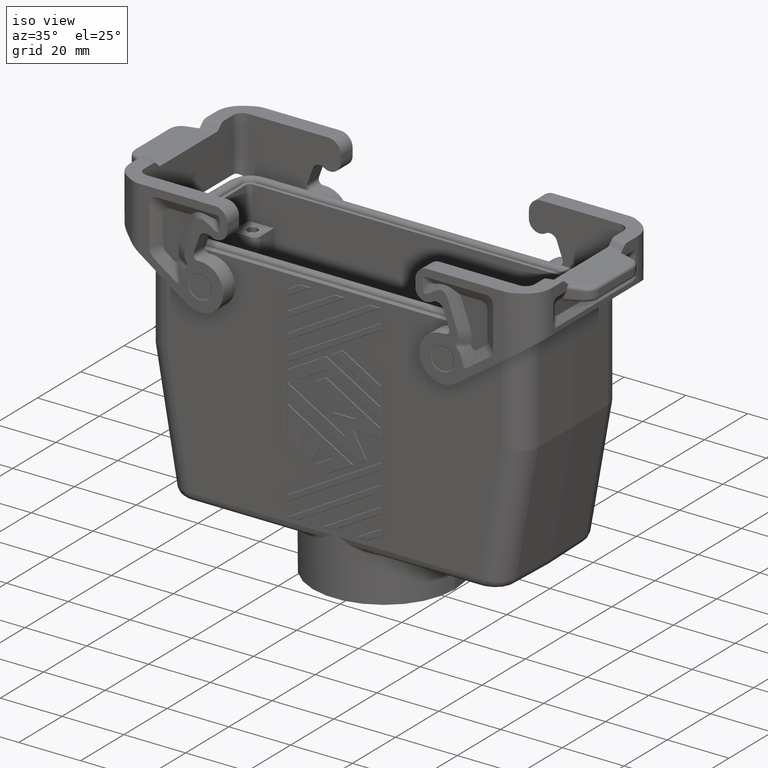
[diagram: clean part render]
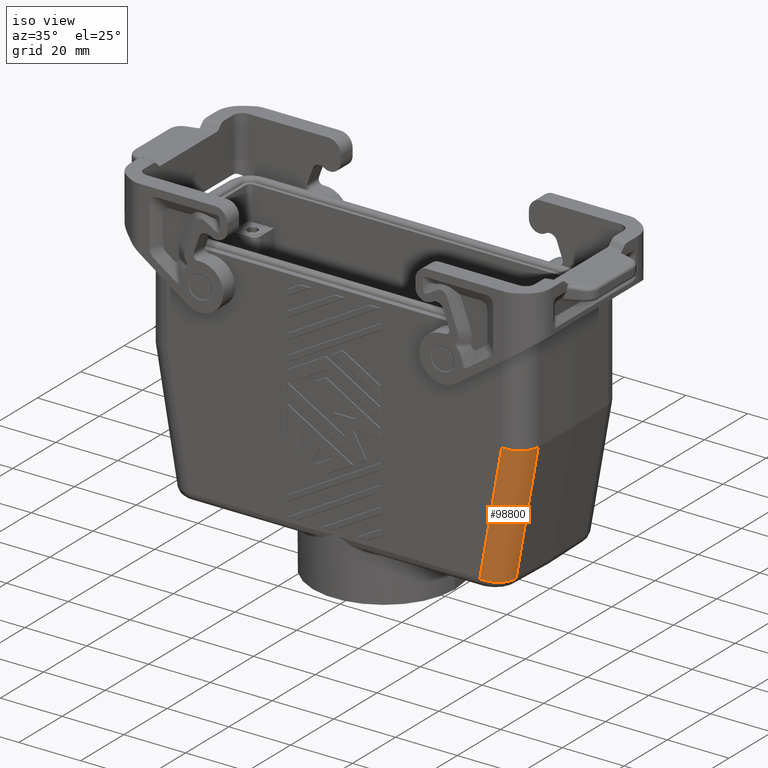
[diagram: same view with one face highlighted and labeled with its STEP entity id]
A machine part, iso view. The second image highlights one B-rep face of the part: STEP entity #98800.
In plain terms, the highlighted cylindrical surface (edge-blend (fillet) strip) has radius 7 mm, axis along (-0.1736, 0, -0.9848).
Its self-contained STEP definition (entity closure, byte-faithful):
#94170=CARTESIAN_POINT('',(-56.9661546824022,55.9634451416427,23.));
#94180=VERTEX_POINT('',#94170);
#94210=CARTESIAN_POINT('',(-56.9932316183048,55.8098842073269,23.));
#94220=DIRECTION('',(0.17364817766693,0.984807753012208,0.));
#94230=VECTOR('',#94220,1.);
#94240=LINE('',#94210,#94230);
#94250=CARTESIAN_POINT('',(-49.8624009179001,96.2508347173039,23.));
#94260=VERTEX_POINT('',#94250);
#94270=EDGE_CURVE('',#94180,#94260,#94240,.T.);
#95540=CARTESIAN_POINT('',(-56.8653656983437,96.8403016360919,
16.122166845061));
#95550=CARTESIAN_POINT('',(-56.8488521163057,96.8732423303058,
16.7261526877415));
#95560=CARTESIAN_POINT('',(-56.6926302894352,96.9174011757976,
17.9319420757039));
#95570=CARTESIAN_POINT('',(-56.0895671890415,96.9186223329769,
19.6854944889818));
#95580=CARTESIAN_POINT('',(-54.9606443835857,96.8271202360239,
21.2110256272061));
#95590=CARTESIAN_POINT('',(-53.4207434889756,96.6631516135544,
22.3118907932749));
#95600=CARTESIAN_POINT('',(-51.6654971933216,96.4612117866428,
22.8748858272061));
#95610=CARTESIAN_POINT('',(-50.4634326006215,96.320960334953,23.));
#95620=CARTESIAN_POINT('',(-49.8624009179001,96.2508347173039,23.));
#95630=B_SPLINE_CURVE_WITH_KNOTS('',6,(#95540,#95550,#95560,#95570,
#95580,#95590,#95600,#95610,#95620),.UNSPECIFIED.,.F.,.F.,(7,1,1,7),(0.,
0.333333333333333,0.666666666666667,1.),.UNSPECIFIED.);
#95640=CARTESIAN_POINT('',(-56.8653656983437,96.8403016360919,
16.1221668450609));
#95650=VERTEX_POINT('',#95640);
#95660=EDGE_CURVE('',#95650,#94260,#95630,.T.);
#97270=CARTESIAN_POINT('',(-61.8534400829231,68.551526063926,
16.1221668450609));
#97280=DIRECTION('',(0.17364817766693,0.984807753012208,
1.2098363701056E-16));
#97290=VECTOR('',#97280,1.);
#97300=LINE('',#97270,#97290);
#97310=CARTESIAN_POINT('',(-63.9650885484969,56.5757725116938,
16.1221668450609));
#97320=VERTEX_POINT('',#97310);
#97330=EDGE_CURVE('',#97320,#95650,#97300,.T.);
#98630=CARTESIAN_POINT('',(-56.9932316183048,55.8098842073269,16.));
#98640=DIRECTION('',(0.17364817766693,0.984807753012208,0.));
#98650=DIRECTION('',(-0.984807753012208,0.17364817766693,0.));
#98660=AXIS2_PLACEMENT_3D('',#98630,#98640,#98650);
#98670=CYLINDRICAL_SURFACE('',#98660,7.);
#98680=CARTESIAN_POINT('',(-56.9661546824021,55.9634451416428,16.));
#98690=DIRECTION('',(0.0871557427476581,0.996194698091746,0.));
#98700=DIRECTION('',(-0.996194698091746,0.0871557427476577,0.));
#98710=AXIS2_PLACEMENT_3D('',#98680,#98690,#98700);
#98720=ELLIPSE('',#98710,7.02673886280343,7.);
#98730=EDGE_CURVE('',#97320,#94180,#98720,.T.);
#98740=ORIENTED_EDGE('',*,*,#98730,.T.);
#98750=ORIENTED_EDGE('',*,*,#97330,.F.);
#98760=ORIENTED_EDGE('',*,*,#95660,.F.);
#98770=ORIENTED_EDGE('',*,*,#94270,.T.);
#98780=EDGE_LOOP('',(#98770,#98760,#98750,#98740));
#98790=FACE_OUTER_BOUND('',#98780,.T.);
#98800=ADVANCED_FACE('',(#98790),#98670,.T.);